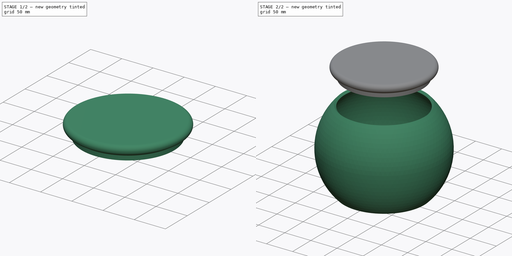
[diagram: build sequence overview — one tinted view per stage of 2, left to right]
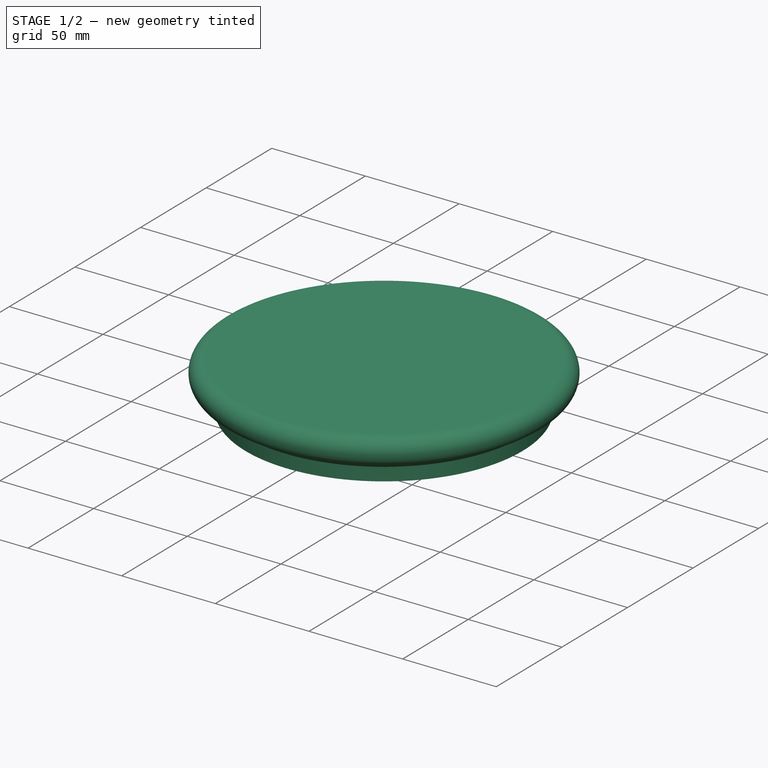
[diagram: stage 1 of 2 — iso view after this stage's code; geometry added in this stage tinted green]
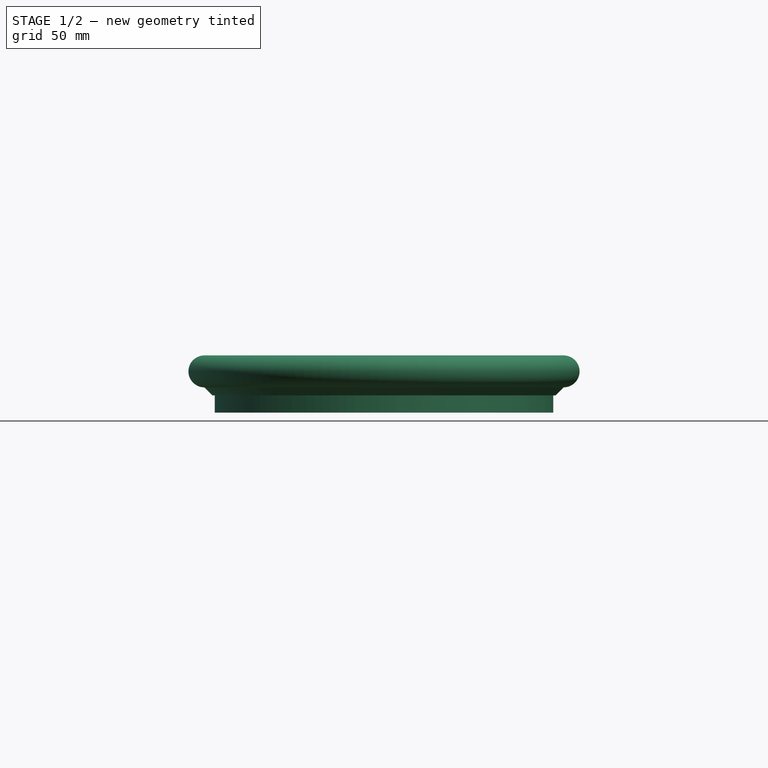
[diagram: stage 1 of 2 — front view after this stage's code; geometry added in this stage tinted green]
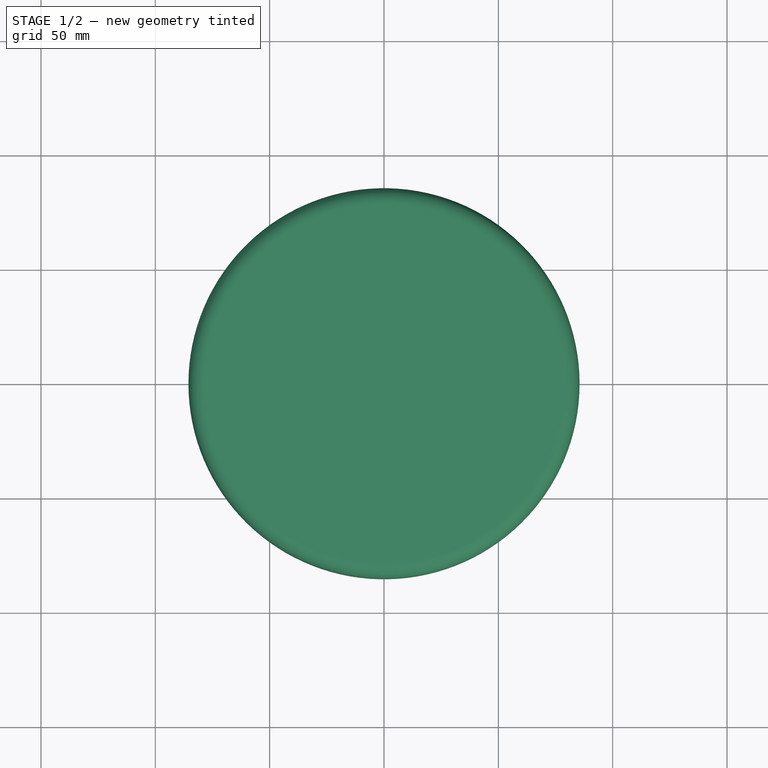
[diagram: stage 1 of 2 — top view after this stage's code; geometry added in this stage tinted green]
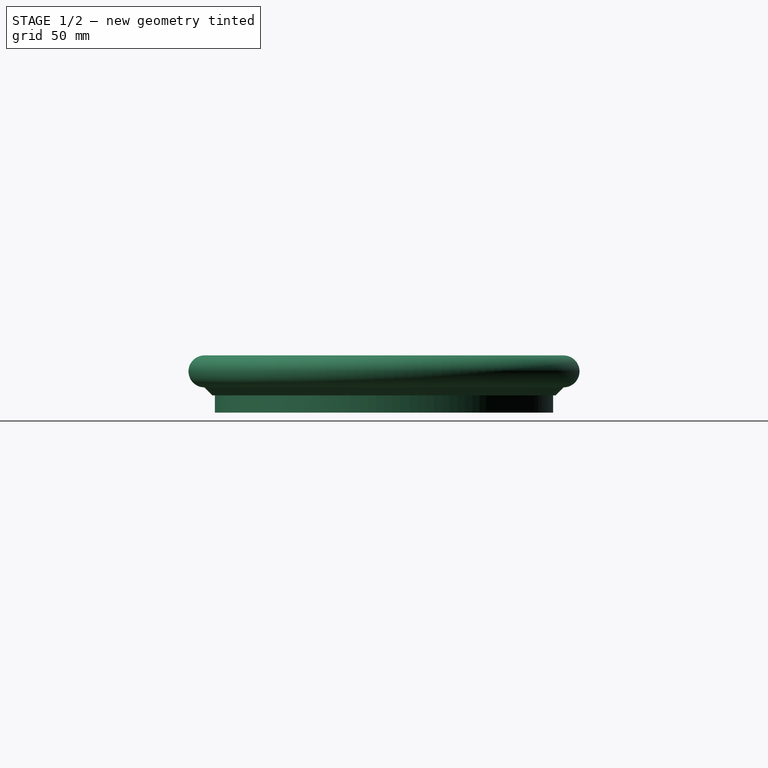
[diagram: stage 1 of 2 — right view after this stage's code; geometry added in this stage tinted green]
FCSTD DOCUMENT  (FreeCAD 1.0R39285 (Git))
Label: RoundBox
License: All rights reserved
LicenseURL: https://en.wikipedia.org/wiki/All_rights_reserved
objects: Sketcher::SketchObject×2, PartDesign::Revolution×2, PartDesign::Body×2
note: 12 computed .brp shape members not serialized (recipe doc carries the construction recipe); baked Part::Feature solids carry a one-line shape summary decoded from their .brp

FEATURE [PartDesign::Body] Body
  AllowCompound = false
  Group = -> [Sketch,Revolution]
  Origin = -> Origin
  Tip = -> Revolution
FEATURE [Sketcher::SketchObject] Sketch001  label="LidS"
  ArcFitTolerance = 0
  AttachmentSupport = -> [XZ_Plane001]
  FullyConstrained = true
  MakeInternals = false
  MapMode = 5
  Placement = pos=(0,0,0) rot=(1,0,0;1.5708rad)
  sketch-geometry (8):
    g0: LineSegment StartX=0 StartY=225 StartZ=0 EndX=0 EndY=200 EndZ=0
    g1: LineSegment StartX=0 StartY=200 StartZ=0 EndX=-74 EndY=200 EndZ=0
    g2: LineSegment StartX=-75 StartY=207.5 StartZ=0 EndX=-78.5355 EndY=211.036 EndZ=0
    g3: LineSegment StartX=-74 StartY=207.5 StartZ=0 EndX=-74 EndY=200 EndZ=0
    g4: LineSegment StartX=-75 StartY=207.5 StartZ=0 EndX=-74 EndY=207.5 EndZ=0
    g5: LineSegment StartX=0 StartY=225 StartZ=0 EndX=-78.5355 EndY=225 EndZ=0
    g6: ArcOfCircle CenterX=-78.5355 CenterY=218.018 CenterZ=0 NormalX=0 NormalY=0 NormalZ=1 AngleXU=0 Radius=6.98223 StartAngle=1.5708 EndAngle=4.71239
    g7: LineSegment [constr] StartX=-78.5355 StartY=225 StartZ=0 EndX=-78.5355 EndY=211.036 EndZ=0
  constraints (24):
    c: Vertical(g0)
    c: Coincident(g0,g1)
    c: Horizontal(g1)
    c: Distance(g1) = 74
    c: Distance(g2) = 5
    c: Distance(g0) = 25
    c: Vertical(g3)
    c: Coincident(g3,g1)
    c: Distance(g3) = 7.5
    c: Angle(g2,g3) = 2.35619
    c: Horizontal(g4)
    c: Coincident(g4,g2)
    c: Coincident(g3,g4)
    c: Distance(g4) = 1
    c: PointOnObject(g0,g-2)
    c: DistanceY(g-1,g0) = 200
    c: Horizontal(g5)
    c: Coincident(g5,g0)
    c: DistanceX(g2,g5) = 0
    c: Coincident(g6,g5)
    c: Coincident(g6,g2)
    c: Coincident(g7,g5)
    c: Coincident(g7,g2)
    c: PointOnObject(g6,g7)
FEATURE [PartDesign::Revolution] Revolution001  label="LidR"
  Angle = 360
  Angle2 = 60
  Axis = (0,2e-16,1)
  Base = (0,0,0)
  Placement = pos=(0,0,0) rot=(1,0,0;1.5708rad)
  Profile = -> Sketch001
  ReferenceAxis = -> Sketch001 [V_Axis]
  Suppressed = false
  Type = 0
FEATURE [PartDesign::Body] Body001  label="Lid"
  AllowCompound = false
  Group = -> [Sketch001,Revolution001]
  Origin = -> Origin001
  Tip = -> Revolution001
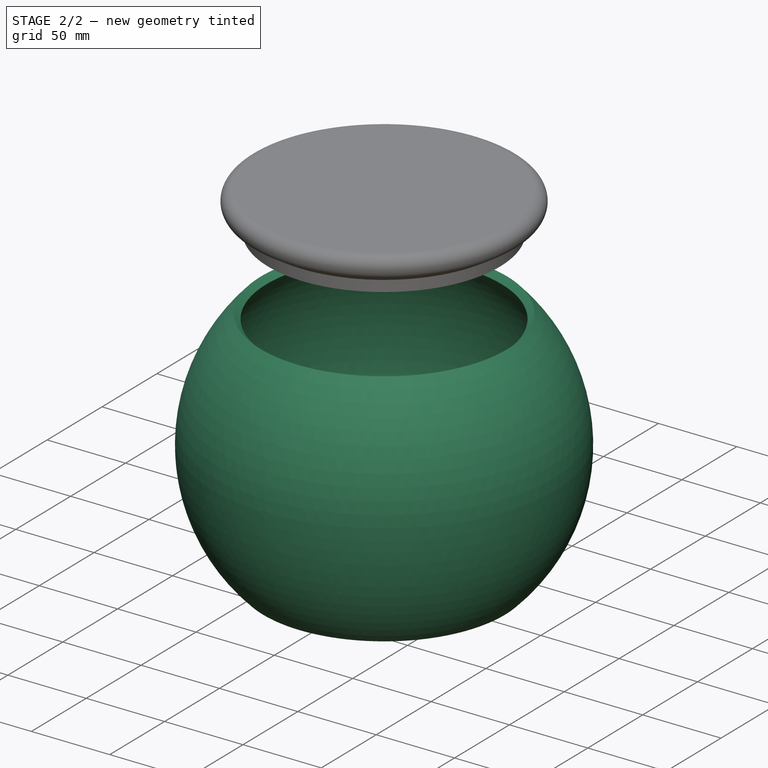
[diagram: stage 2 of 2 — iso view after this stage's code; geometry added in this stage tinted green]
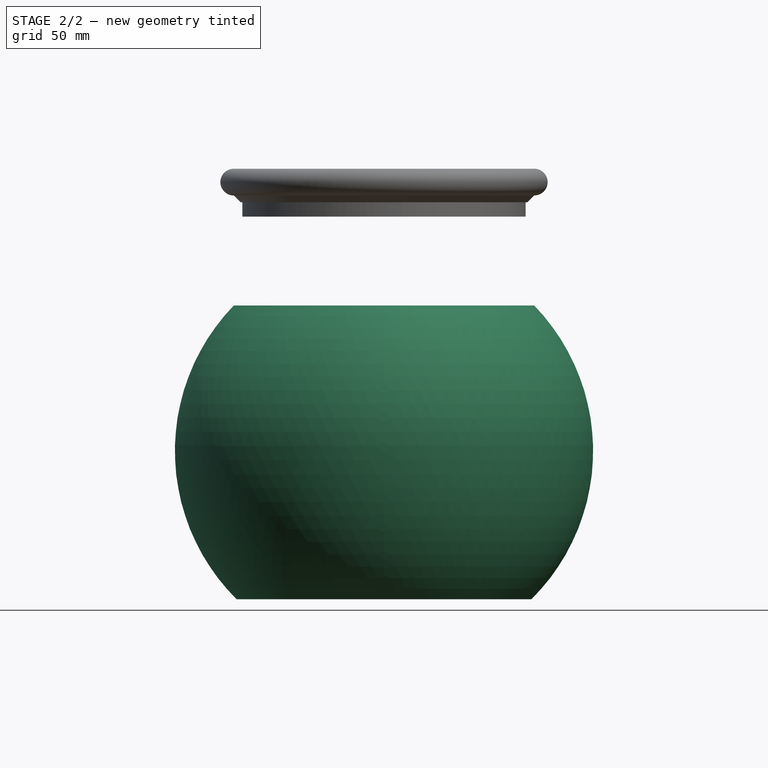
[diagram: stage 2 of 2 — front view after this stage's code; geometry added in this stage tinted green]
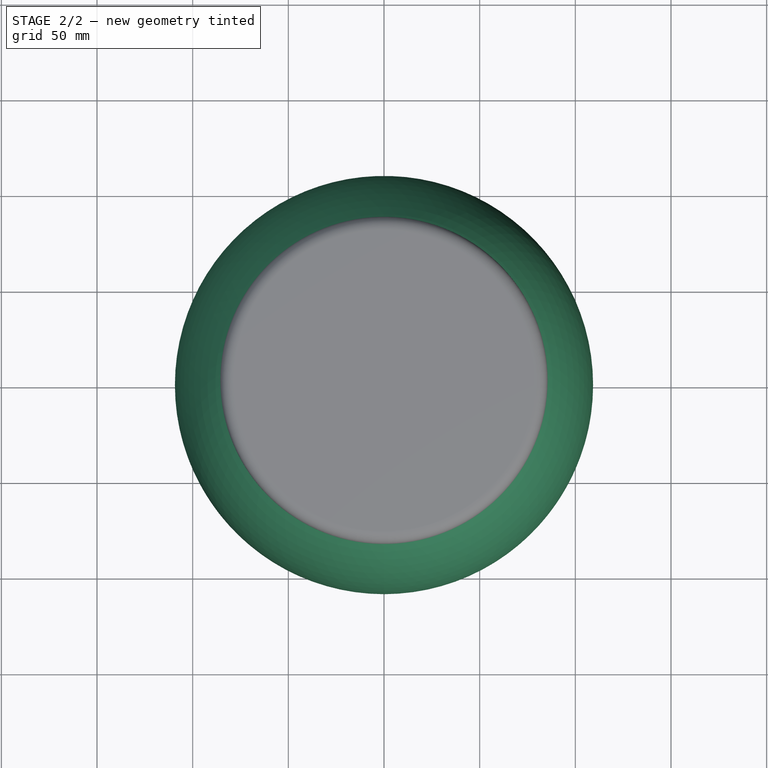
[diagram: stage 2 of 2 — top view after this stage's code; geometry added in this stage tinted green]
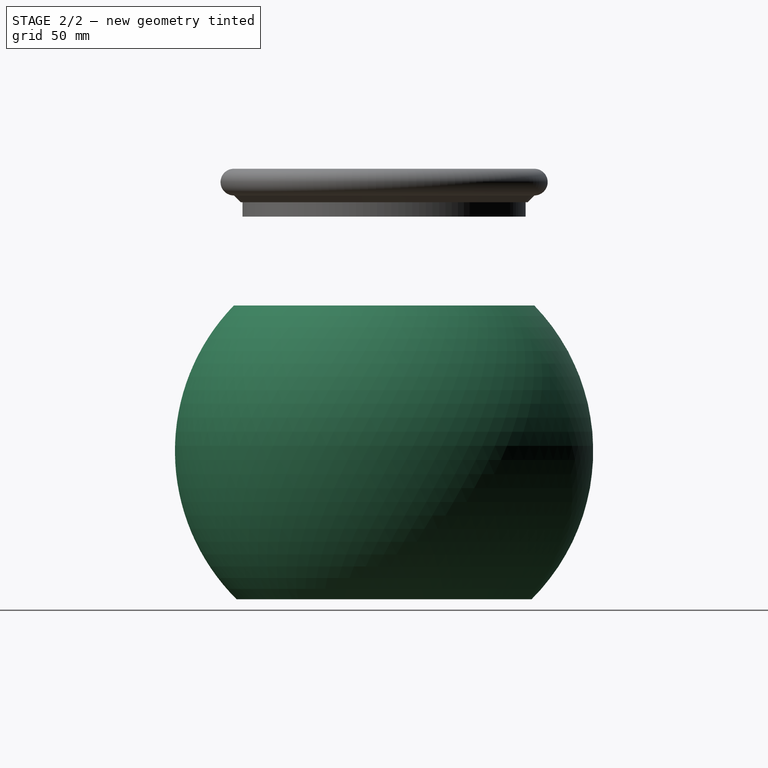
[diagram: stage 2 of 2 — right view after this stage's code; geometry added in this stage tinted green]
FEATURE [Sketcher::SketchObject] Sketch  label="BodyS"
  ArcFitTolerance = 0
  AttachmentSupport = -> [YZ_Plane]
  FullyConstrained = true
  MakeInternals = false
  MapMode = 5
  Placement = pos=(0,0,0) rot=(0.57735,0.57735,0.57735;2.0944rad)
  sketch-geometry (6):
    g0: LineSegment StartX=-77.0907 StartY=0 StartZ=0 EndX=0 EndY=0 EndZ=0
    g1: LineSegment StartX=-75 StartY=5 StartZ=0 EndX=0 EndY=5 EndZ=0
    g2: LineSegment StartX=0 StartY=5 StartZ=0 EndX=0 EndY=0 EndZ=0
    g3: ArcOfCircle CenterX=0 CenterY=77.5 CenterZ=0 NormalX=0 NormalY=0 NormalZ=1 AngleXU=0 Radius=104.313 StartAngle=2.37314 EndAngle=3.91004
    g4: ArcOfCircle CenterX=0 CenterY=77.5 CenterZ=0 NormalX=0 NormalY=0 NormalZ=1 AngleXU=0 Radius=109.313 StartAngle=2.37237 EndAngle=3.92964
    g5: LineSegment StartX=-78.5355 StartY=153.536 StartZ=0 EndX=-75 EndY=150 EndZ=0
  constraints (18):
    c: Horizontal(g1)
    c: Coincident(g2,g1)
    c: Coincident(g2,g0)
    c: Vertical(g2)
    c: Coincident(g0,g-1)
    c: Distance(g2) = 5
    c: Coincident(g3,g1)
    c: Coincident(g4,g3)
    c: Coincident(g4,g0)
    c: Coincident(g5,g4)
    c: Coincident(g5,g3)
    c: Horizontal(g0)
    c: Angle(g5) = -0.785398
    c: DistanceX(g3,g-1) = 75
    c: Distance(g5) = 5
    c: PointOnObject(g3,g-2)
    c: DistanceY(g0,g3) = 150
    c: DistanceX(g3,g1) = 0
FEATURE [PartDesign::Revolution] Revolution  label="BodyR"
  Angle = 360
  Angle2 = 60
  Axis = (0,0,1)
  Base = (0,0,0)
  Placement = pos=(0,0,0) rot=(1,1,1;2.0944rad)
  Profile = -> Sketch
  ReferenceAxis = -> Sketch [V_Axis]
  Suppressed = false
  Type = 0
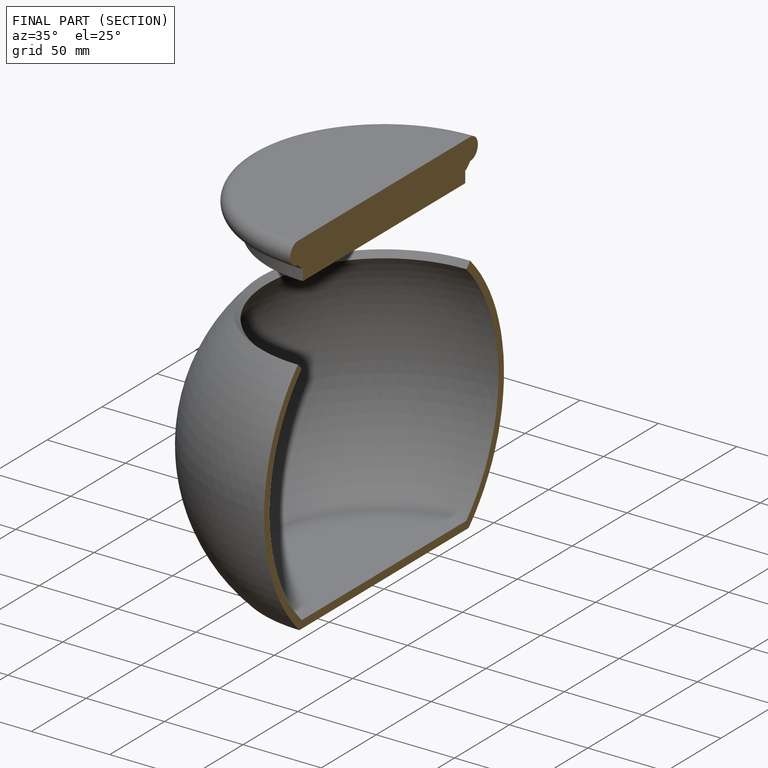
[diagram: finished part — half-section view (interior)]
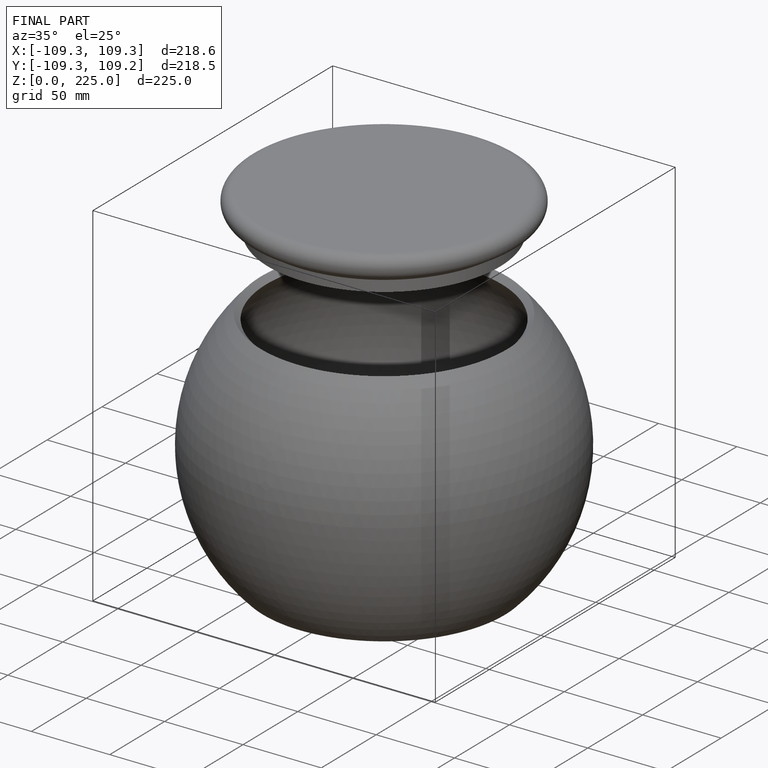
[diagram: finished part — iso view with bounding-box wireframe]
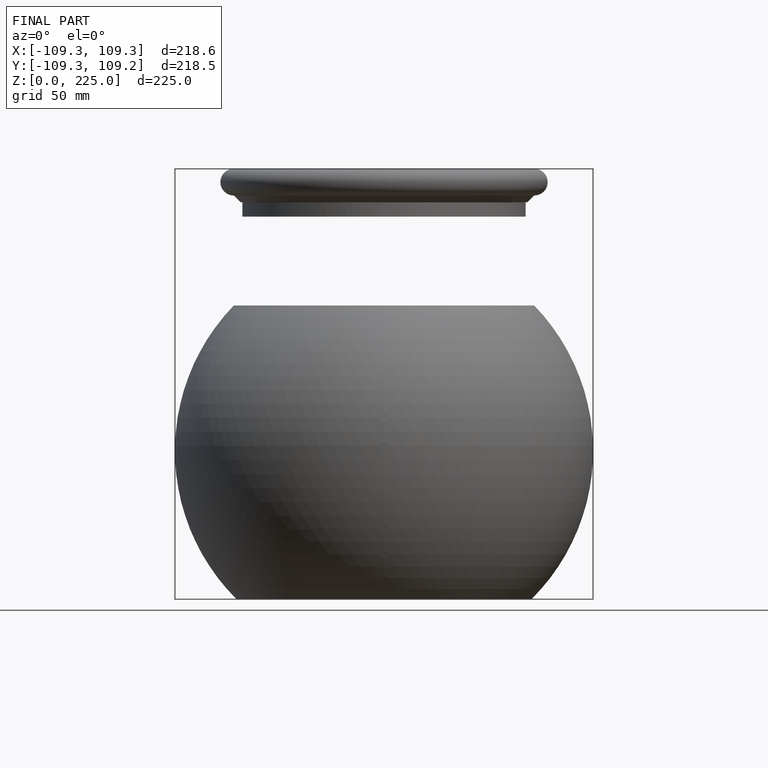
[diagram: finished part — front view with bounding-box wireframe]
